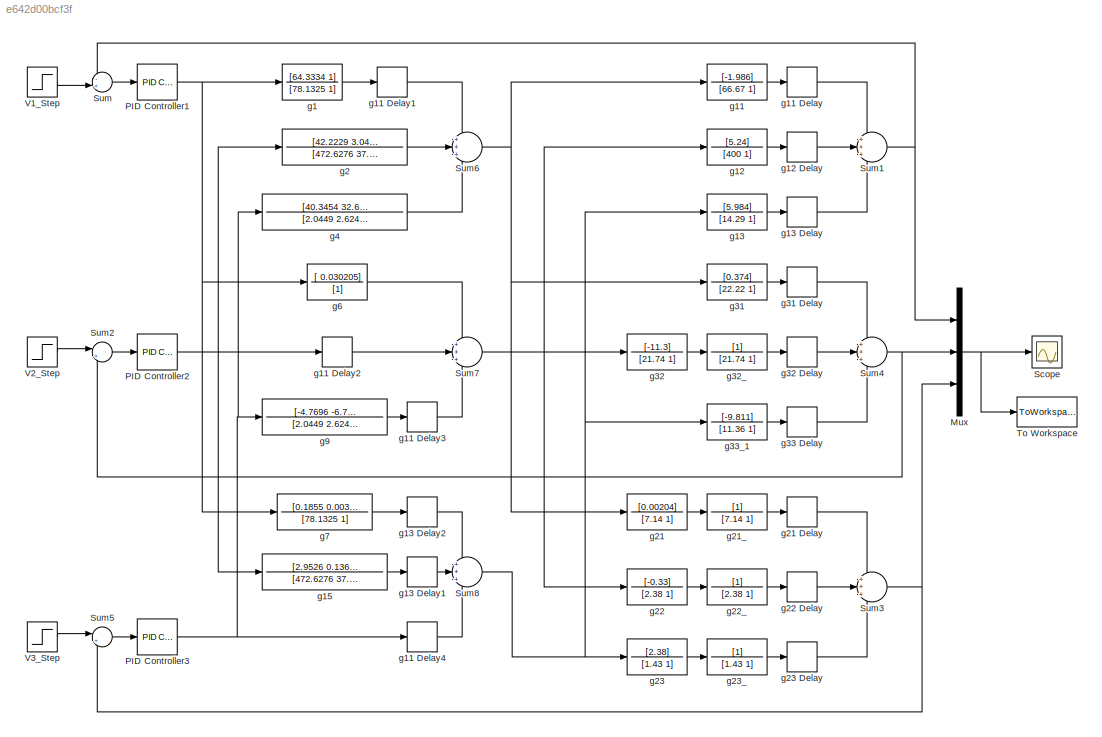
MODEL slx_e642d00bcf3f
KIND model
BLOCK [Mux] Mux
  DisplayOption = bar
  Inputs = 3
  Ports = [3, 1]
BLOCK [Reference] PID Controller1  REF=simulink/Continuous/PID Controller
  AntiWindupMode = none
  Controller = PID
  D = 0
  DOutDataTypeStr = Inherit: Inherit via internal rule
  DOutMax = []
  DOutMin = []
  DParamDataTypeStr = Inherit: Inherit via internal rule
  DParamMax = []
  DParamMin = []
  ExternalReset = none
  FilterContinuousStateAttributes = ''
  FilterMethod = Forward Euler
  FilterOutDataTypeStr = Inherit: Inherit via internal rule
  FilterOutMax = []
  FilterOutMin = []
  FilterRTWStateStorageClass = Auto
  FilterStateMustResolveToSignalObject = off
  Form = Parallel
  I = -0.0247
  IOutDataTypeStr = Inherit: Inherit via internal rule
  IOutMax = []
  IOutMin = []
  IParamDataTypeStr = Inherit: Inherit via internal rule
  IParamMax = []
  IParamMin = []
  IgnoreLimit = off
  InitialConditionForFilter = 0
  InitialConditionForIntegrator = 0
  InitialConditionSource = internal
  IntegratorContinuousStateAttributes = ''
  IntegratorMethod = Forward Euler
  IntegratorOutDataTypeStr = Inherit: Inherit via internal rule
  IntegratorOutMax = []
  IntegratorOutMin = []
  IntegratorRTWStateStorageClass = Auto
  IntegratorStateMustResolveToSignalObject = off
  Kb = 1
  KbOutDataTypeStr = Inherit: Inherit via internal rule
  KbOutMax = []
  KbOutMin = []
  KbParamDataTypeStr = Inherit: Inherit via internal rule
  KbParamMax = []
  KbParamMin = []
  Kt = 1
  KtOutDataTypeStr = Inherit: Inherit via internal rule
  KtOutMax = []
  KtOutMin = []
  KtParamDataTypeStr = Inherit: Inherit via internal rule
  KtParamMax = []
  KtParamMin = []
  LimitOutput = off
  LinearizeAsGain = on
  LockScale = off
  LowerSaturationLimit = -inf
  N = 100
  NOutDataTypeStr = Inherit: Inherit via internal rule
  NOutMax = []
  NOutMin = []
  NParamDataTypeStr = Inherit: Inherit via internal rule
  NParamMax = []
  NParamMin = []
  P = -1.9309
  POutDataTypeStr = Inherit: Inherit via internal rule
  POutMax = []
  POutMin = []
  PParamDataTypeStr = Inherit: Inherit via internal rule
  PParamMax = []
  PParamMin = []
  Ports = [1, 1]
  RndMeth = Floor
  SampleTime = 1
  SaturateOnIntegerOverflow = off
  SaturationOutDataTypeStr = Inherit: Same as input
  SaturationOutMax = []
  SaturationOutMin = []
  SourceBlock = simulink/Continuous/PID Controller
  SourceType = PID 1dof
  SumAccumDataTypeStr = Inherit: Inherit via internal rule
  SumDAccumDataTypeStr = Inherit: Inherit via internal rule
  SumDOutDataTypeStr = Inherit: Inherit via internal rule
  SumDOutMax = []
  SumDOutMin = []
  SumI1AccumDataTypeStr = Inherit: Inherit via internal rule
  SumI1OutDataTypeStr = Inherit: Inherit via internal rule
  SumI1OutMax = []
  SumI1OutMin = []
  SumI2AccumDataTypeStr = Inherit: Inherit via internal rule
  SumI2OutDataTypeStr = Inherit: Inherit via internal rule
  SumI2OutMax = []
  SumI2OutMin = []
  SumI3AccumDataTypeStr = Inherit: Inherit via internal rule
  SumI3OutDataTypeStr = Inherit: Inherit via internal rule
  SumI3OutMax = []
  SumI3OutMin = []
  SumOutDataTypeStr = Inherit: Inherit via internal rule
  SumOutMax = []
  SumOutMin = []
  TimeDomain = Continuous-time
  TrackingMode = off
  UpperSaturationLimit = inf
  ZeroCross = on
BLOCK [Reference] PID Controller2  REF=simulink/Continuous/PID Controller
  AntiWindupMode = none
  Controller = PID
  D = -1
  DOutDataTypeStr = Inherit: Inherit via internal rule
  DOutMax = []
  DOutMin = []
  DParamDataTypeStr = Inherit: Inherit via internal rule
  DParamMax = []
  DParamMin = []
  ExternalReset = none
  FilterContinuousStateAttributes = ''
  FilterMethod = Forward Euler
  FilterOutDataTypeStr = Inherit: Inherit via internal rule
  FilterOutMax = []
  FilterOutMin = []
  FilterRTWStateStorageClass = Auto
  FilterStateMustResolveToSignalObject = off
  Form = Parallel
  I = -0.0094
  IOutDataTypeStr = Inherit: Inherit via internal rule
  IOutMax = []
  IOutMin = []
  IParamDataTypeStr = Inherit: Inherit via internal rule
  IParamMax = []
  IParamMin = []
  IgnoreLimit = off
  InitialConditionForFilter = 0
  InitialConditionForIntegrator = 0
  InitialConditionSource = internal
  IntegratorContinuousStateAttributes = ''
  IntegratorMethod = Forward Euler
  IntegratorOutDataTypeStr = Inherit: Inherit via internal rule
  IntegratorOutMax = []
  IntegratorOutMin = []
  IntegratorRTWStateStorageClass = Auto
  IntegratorStateMustResolveToSignalObject = off
  Kb = 1
  KbOutDataTypeStr = Inherit: Inherit via internal rule
  KbOutMax = []
  KbOutMin = []
  KbParamDataTypeStr = Inherit: Inherit via internal rule
  KbParamMax = []
  KbParamMin = []
  Kt = 1
  KtOutDataTypeStr = Inherit: Inherit via internal rule
  KtOutMax = []
  KtOutMin = []
  KtParamDataTypeStr = Inherit: Inherit via internal rule
  KtParamMax = []
  KtParamMin = []
  LimitOutput = off
  LinearizeAsGain = on
  LockScale = off
  LowerSaturationLimit = -inf
  N = 100
  NOutDataTypeStr = Inherit: Inherit via internal rule
  NOutMax = []
  NOutMin = []
  NParamDataTypeStr = Inherit: Inherit via internal rule
  NParamMax = []
  NParamMin = []
  P = -0.3503
  POutDataTypeStr = Inherit: Inherit via internal rule
  POutMax = []
  POutMin = []
  PParamDataTypeStr = Inherit: Inherit via internal rule
  PParamMax = []
  PParamMin = []
  Ports = [1, 1]
  RndMeth = Floor
  SampleTime = 1
  SaturateOnIntegerOverflow = off
  SaturationOutDataTypeStr = Inherit: Same as input
  SaturationOutMax = []
  SaturationOutMin = []
  SourceBlock = simulink/Continuous/PID Controller
  SourceType = PID 1dof
  SumAccumDataTypeStr = Inherit: Inherit via internal rule
  SumDAccumDataTypeStr = Inherit: Inherit via internal rule
  SumDOutDataTypeStr = Inherit: Inherit via internal rule
  SumDOutMax = []
  SumDOutMin = []
  SumI1AccumDataTypeStr = Inherit: Inherit via internal rule
  SumI1OutDataTypeStr = Inherit: Inherit via internal rule
  SumI1OutMax = []
  SumI1OutMin = []
  SumI2AccumDataTypeStr = Inherit: Inherit via internal rule
  SumI2OutDataTypeStr = Inherit: Inherit via internal rule
  SumI2OutMax = []
  SumI2OutMin = []
  SumI3AccumDataTypeStr = Inherit: Inherit via internal rule
  SumI3OutDataTypeStr = Inherit: Inherit via internal rule
  SumI3OutMax = []
  SumI3OutMin = []
  SumOutDataTypeStr = Inherit: Inherit via internal rule
  SumOutMax = []
  SumOutMin = []
  TimeDomain = Continuous-time
  TrackingMode = off
  UpperSaturationLimit = inf
  ZeroCross = on
BLOCK [Reference] PID Controller3  REF=simulink/Continuous/PID Controller
  AntiWindupMode = none
  Controller = PID
  D = 0.2364
  DOutDataTypeStr = Inherit: Inherit via internal rule
  DOutMax = []
  DOutMin = []
  DParamDataTypeStr = Inherit: Inherit via internal rule
  DParamMax = []
  DParamMin = []
  ExternalReset = none
  FilterContinuousStateAttributes = ''
  FilterMethod = Forward Euler
  FilterOutDataTypeStr = Inherit: Inherit via internal rule
  FilterOutMax = []
  FilterOutMin = []
  FilterRTWStateStorageClass = Auto
  FilterStateMustResolveToSignalObject = off
  Form = Parallel
  I = 0.1156
  IOutDataTypeStr = Inherit: Inherit via internal rule
  IOutMax = []
  IOutMin = []
  IParamDataTypeStr = Inherit: Inherit via internal rule
  IParamMax = []
  IParamMin = []
  IgnoreLimit = off
  InitialConditionForFilter = 0
  InitialConditionForIntegrator = 0
  InitialConditionSource = internal
  IntegratorContinuousStateAttributes = ''
  IntegratorMethod = Forward Euler
  IntegratorOutDataTypeStr = Inherit: Inherit via internal rule
  IntegratorOutMax = []
  IntegratorOutMin = []
  IntegratorRTWStateStorageClass = Auto
  IntegratorStateMustResolveToSignalObject = off
  Kb = 1
  KbOutDataTypeStr = Inherit: Inherit via internal rule
  KbOutMax = []
  KbOutMin = []
  KbParamDataTypeStr = Inherit: Inherit via internal rule
  KbParamMax = []
  KbParamMin = []
  Kt = 1
  KtOutDataTypeStr = Inherit: Inherit via internal rule
  KtOutMax = []
  KtOutMin = []
  KtParamDataTypeStr = Inherit: Inherit via internal rule
  KtParamMax = []
  KtParamMin = []
  LimitOutput = off
  LinearizeAsGain = on
  LockScale = off
  LowerSaturationLimit = -inf
  N = 100
  NOutDataTypeStr = Inherit: Inherit via internal rule
  NOutMax = []
  NOutMin = []
  NParamDataTypeStr = Inherit: Inherit via internal rule
  NParamMax = []
  NParamMin = []
  P = 0.3034
  POutDataTypeStr = Inherit: Inherit via internal rule
  POutMax = []
  POutMin = []
  PParamDataTypeStr = Inherit: Inherit via internal rule
  PParamMax = []
  PParamMin = []
  Ports = [1, 1]
  RndMeth = Floor
  SampleTime = 1
  SaturateOnIntegerOverflow = off
  SaturationOutDataTypeStr = Inherit: Same as input
  SaturationOutMax = []
  SaturationOutMin = []
  SourceBlock = simulink/Continuous/PID Controller
  SourceType = PID 1dof
  SumAccumDataTypeStr = Inherit: Inherit via internal rule
  SumDAccumDataTypeStr = Inherit: Inherit via internal rule
  SumDOutDataTypeStr = Inherit: Inherit via internal rule
  SumDOutMax = []
  SumDOutMin = []
  SumI1AccumDataTypeStr = Inherit: Inherit via internal rule
  SumI1OutDataTypeStr = Inherit: Inherit via internal rule
  SumI1OutMax = []
  SumI1OutMin = []
  SumI2AccumDataTypeStr = Inherit: Inherit via internal rule
  SumI2OutDataTypeStr = Inherit: Inherit via internal rule
  SumI2OutMax = []
  SumI2OutMin = []
  SumI3AccumDataTypeStr = Inherit: Inherit via internal rule
  SumI3OutDataTypeStr = Inherit: Inherit via internal rule
  SumI3OutMax = []
  SumI3OutMin = []
  SumOutDataTypeStr = Inherit: Inherit via internal rule
  SumOutMax = []
  SumOutMin = []
  TimeDomain = Continuous-time
  TrackingMode = off
  UpperSaturationLimit = inf
  ZeroCross = on
BLOCK [Scope] Scope
  Floating = off
  NumInputPorts = 1
  Ports = [1]
  ShowLegends = off
  ZoomMode = yonly
BLOCK [Sum] Sum
  IconShape = round
  InputSameDT = off
  Inputs = -+|
  OutDataTypeStr = Inherit: Inherit via internal rule
  Ports = [2, 1]
  SaturateOnIntegerOverflow = off
BLOCK [Sum] Sum1
  IconShape = round
  InputSameDT = off
  Inputs = +++
  OutDataTypeStr = Inherit: Inherit via internal rule
  Ports = [3, 1]
  SaturateOnIntegerOverflow = off
BLOCK [Sum] Sum2
  IconShape = round
  InputSameDT = off
  Inputs = |+-
  OutDataTypeStr = Inherit: Inherit via internal rule
  Ports = [2, 1]
  SaturateOnIntegerOverflow = off
BLOCK [Sum] Sum3
  IconShape = round
  InputSameDT = off
  Inputs = +++
  OutDataTypeStr = Inherit: Inherit via internal rule
  Ports = [3, 1]
  SaturateOnIntegerOverflow = off
BLOCK [Sum] Sum4
  IconShape = round
  InputSameDT = off
  Inputs = +++
  OutDataTypeStr = Inherit: Inherit via internal rule
  Ports = [3, 1]
  SaturateOnIntegerOverflow = off
BLOCK [Sum] Sum5
  IconShape = round
  InputSameDT = off
  Inputs = |+-
  OutDataTypeStr = Inherit: Inherit via internal rule
  Ports = [2, 1]
  SaturateOnIntegerOverflow = off
BLOCK [Sum] Sum6
  IconShape = round
  InputSameDT = off
  Inputs = +++
  OutDataTypeStr = Inherit: Inherit via internal rule
  Ports = [3, 1]
  SaturateOnIntegerOverflow = off
BLOCK [Sum] Sum7
  IconShape = round
  InputSameDT = off
  Inputs = +++
  OutDataTypeStr = Inherit: Inherit via internal rule
  Ports = [3, 1]
  SaturateOnIntegerOverflow = off
BLOCK [Sum] Sum8
  IconShape = round
  InputSameDT = off
  Inputs = +++
  OutDataTypeStr = Inherit: Inherit via internal rule
  Ports = [3, 1]
  SaturateOnIntegerOverflow = off
BLOCK [ToWorkspace] To Workspace
  FixptAsFi = on
  MaxDataPoints = inf
  Ports = [1]
  SampleTime = -1
  Save2DSignal = 3-D array (concatenate along third dimension)
  SaveFormat = Timeseries
  VariableName = simout
BLOCK [Step] V1_Step
  SampleTime = 0
BLOCK [Step] V2_Step
  SampleTime = 0
  Time = 250
BLOCK [Step] V3_Step
  SampleTime = 0
  Time = 500
BLOCK [TransferFcn] g1
  Denominator = [78.1325 1]
  Numerator = [64.3334 1]
BLOCK [TransferFcn] g11
  Denominator = [66.67 1]
  Numerator = [-1.986]
BLOCK [TransportDelay] g11 Delay
  DelayTime = 0.71
  Ports = [1, 1]
BLOCK [TransportDelay] g11 Delay1
  DelayTime = 11.0348
  Ports = [1, 1]
BLOCK [TransportDelay] g11 Delay2
  DelayTime = 1.5926
  Ports = [1, 1]
BLOCK [TransportDelay] g11 Delay3
  DelayTime = 0.55
  Ports = [1, 1]
BLOCK [TransportDelay] g11 Delay4
  DelayTime = 1.3174
  Ports = [1, 1]
BLOCK [TransferFcn] g12
  Denominator = [400 1]
  Numerator = [5.24]
BLOCK [TransportDelay] g12 Delay
  DelayTime = 60
  Ports = [1, 1]
BLOCK [TransferFcn] g13
  Denominator = [14.29 1]
  Numerator = [5.984]
BLOCK [TransportDelay] g13 Delay
  DelayTime = 2.24
  Ports = [1, 1]
BLOCK [TransportDelay] g13 Delay1
  DelayTime = 1.7933
  Ports = [1, 1]
BLOCK [TransportDelay] g13 Delay2
  DelayTime = 2.9894
  Ports = [1, 1]
BLOCK [TransferFcn] g15
  Denominator = [472.6276 37.1515 1]
  Numerator = [2.9526 0.1360]
BLOCK [TransferFcn] g2
  Denominator = [472.6276 37.1515 1]
  Numerator = [42.2229 3.0484]
BLOCK [TransferFcn] g21
  Denominator = [7.14 1]
  Numerator = [0.00204]
BLOCK [TransportDelay] g21 Delay
  DelayTime = 0.59
  Ports = [1, 1]
BLOCK [TransferFcn] g21_
  Denominator = [7.14 1]
BLOCK [TransferFcn] g22
  Denominator = [2.38 1]
  Numerator = [-0.33]
BLOCK [TransportDelay] g22 Delay
  DelayTime = 0.68
  Ports = [1, 1]
BLOCK [TransferFcn] g22_
  Denominator = [2.38 1]
BLOCK [TransferFcn] g23
  Denominator = [1.43 1]
  Numerator = [2.38]
BLOCK [TransportDelay] g23 Delay
  DelayTime = 0.42
  Ports = [1, 1]
BLOCK [TransferFcn] g23_
  Denominator = [1.43 1]
BLOCK [TransferFcn] g31
  Denominator = [22.22 1]
  Numerator = [0.374]
BLOCK [TransportDelay] g31 Delay
  DelayTime = 7.75
  Ports = [1, 1]
BLOCK [TransferFcn] g32
  Denominator = [21.74 1]
  Numerator = [-11.3]
BLOCK [TransportDelay] g32 Delay
  DelayTime = 3.79
  Ports = [1, 1]
BLOCK [TransferFcn] g32_
  Denominator = [21.74 1]
BLOCK [TransportDelay] g33 Delay
  DelayTime = 1.59
  Ports = [1, 1]
BLOCK [TransferFcn] g33_1
  Denominator = [11.36 1]
  Numerator = [-9.811]
BLOCK [TransferFcn] g4
  Denominator = [2.0449 2.6242 1]
  Numerator = [40.3454 32.6153 0.7914]
BLOCK [TransferFcn] g6
  Denominator = [1]
  Numerator = [ 0.030205]
BLOCK [TransferFcn] g7
  Denominator = [78.1325 1]
  Numerator = [0.1855 0.003331]
BLOCK [TransferFcn] g9
  Denominator = [2.0449 2.6242 1]
  Numerator = [-4.7696 -6.7944 -0.8420]
NET Mux:1 -> Scope:1, To Workspace:1
NET PID Controller1:1 -> g1:1, g6:1, g7:1
NET PID Controller2:1 -> g11 Delay2:1, g15:1, g2:1
NET PID Controller3:1 -> g11 Delay4:1, g4:1, g9:1
NET Sum1:1 -> Mux:1, Sum:1
LINE Sum2:1 -> PID Controller2:1
NET Sum3:1 -> Mux:3, Sum5:2
NET Sum4:1 -> Mux:2, Sum2:2
LINE Sum5:1 -> PID Controller3:1
NET Sum6:1 -> g11:1, g21:1, g31:1
NET Sum7:1 -> g12:1, g22:1, g32:1
NET Sum8:1 -> g13:1, g23:1, g33_1:1
LINE Sum:1 -> PID Controller1:1
LINE V1_Step:1 -> Sum:2
LINE V2_Step:1 -> Sum2:1
LINE V3_Step:1 -> Sum5:1
LINE g11 Delay1:1 -> Sum6:1
LINE g11 Delay2:1 -> Sum7:2
LINE g11 Delay3:1 -> Sum7:3
LINE g11 Delay4:1 -> Sum8:3
LINE g11 Delay:1 -> Sum1:1
LINE g11:1 -> g11 Delay:1
LINE g12 Delay:1 -> Sum1:2
LINE g12:1 -> g12 Delay:1
LINE g13 Delay1:1 -> Sum8:2
LINE g13 Delay2:1 -> Sum8:1
LINE g13 Delay:1 -> Sum1:3
LINE g13:1 -> g13 Delay:1
LINE g15:1 -> g13 Delay1:1
LINE g1:1 -> g11 Delay1:1
LINE g21 Delay:1 -> Sum3:1
LINE g21:1 -> g21_:1
LINE g21_:1 -> g21 Delay:1
LINE g22 Delay:1 -> Sum3:2
LINE g22:1 -> g22_:1
LINE g22_:1 -> g22 Delay:1
LINE g23 Delay:1 -> Sum3:3
LINE g23:1 -> g23_:1
LINE g23_:1 -> g23 Delay:1
LINE g2:1 -> Sum6:2
LINE g31 Delay:1 -> Sum4:1
LINE g31:1 -> g31 Delay:1
LINE g32 Delay:1 -> Sum4:2
LINE g32:1 -> g32_:1
LINE g32_:1 -> g32 Delay:1
LINE g33 Delay:1 -> Sum4:3
LINE g33_1:1 -> g33 Delay:1
LINE g4:1 -> Sum6:3
LINE g6:1 -> Sum7:1
LINE g7:1 -> g13 Delay2:1
LINE g9:1 -> g11 Delay3:1
note: NET lines group one-source signal fan-out (src -> all destinations, sorted); 1:1 wires keep LINE
